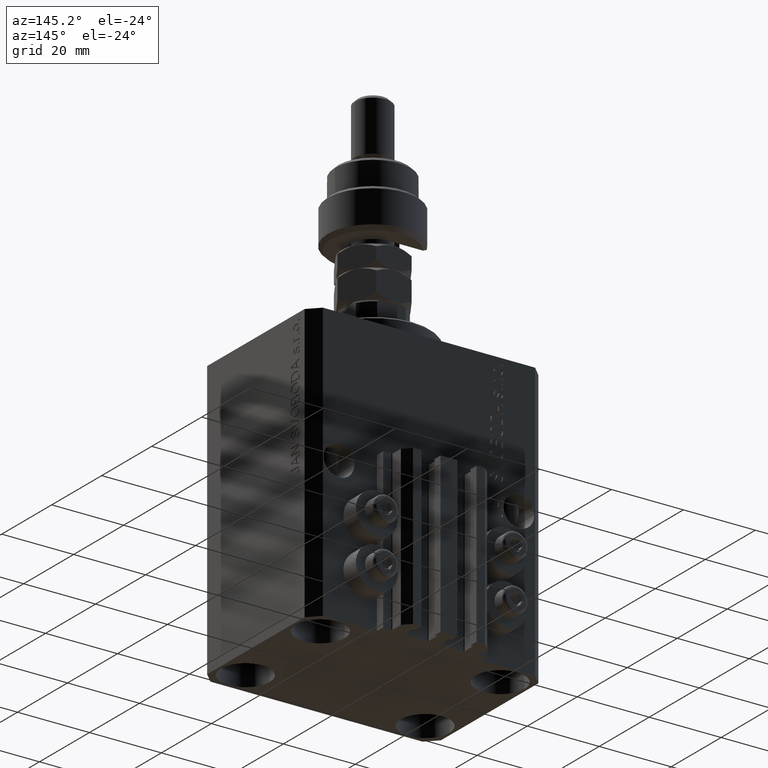
[diagram: clean part render]
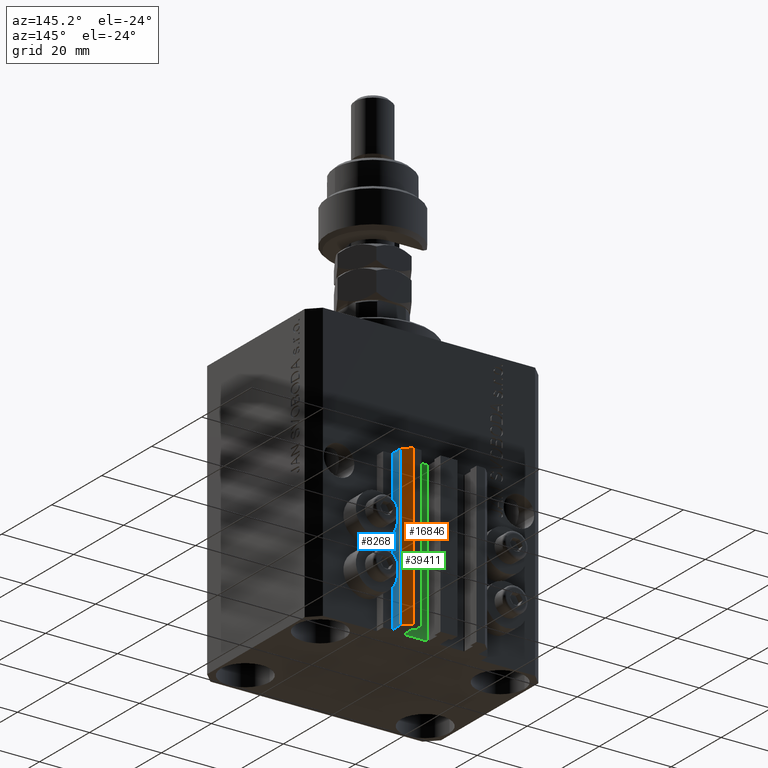
[diagram: same view with three faces highlighted in distinct colors, each labeled with its STEP entity id]
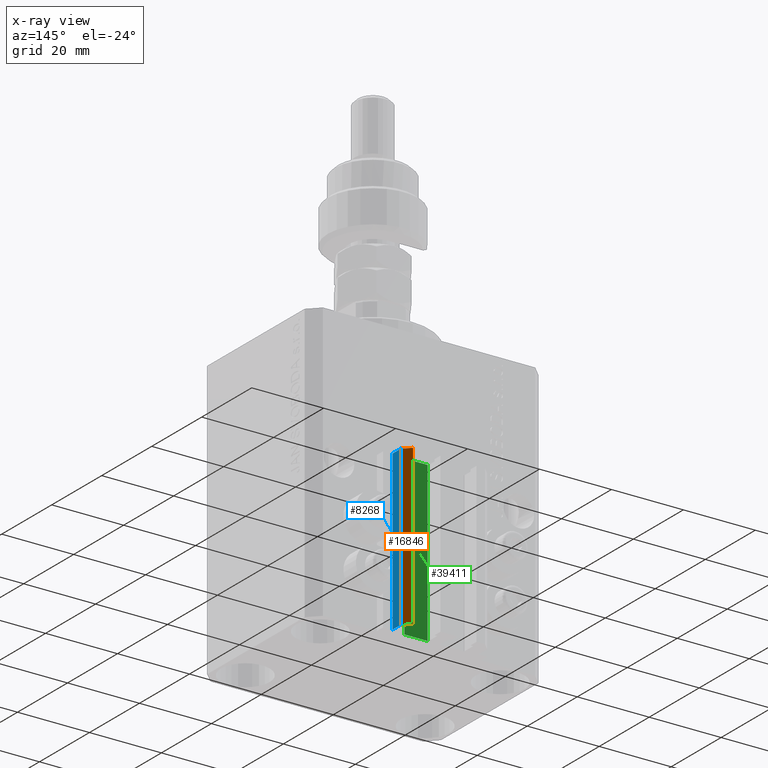
[diagram: x-ray of the same camera — body ghosted, the three highlighted faces saturated]
A machine part, auxiliary view with three faces highlighted in distinct colors.
The next image is the same camera in x-ray (body ghosted, the three faces saturated) — at least one of them is partly hidden behind the body in this view.
Their STEP definitions:

[orange] entity #16846 — the highlighted planar face has unit normal (0.7071, 0.7071, 0).
#663 = EDGE_CURVE ( 'NONE', #38667, #28273, #6923, .T. ) ;
#1920 = EDGE_CURVE ( 'NONE', #28273, #45455, #6463, .T. ) ;
#3165 = CARTESIAN_POINT ( 'NONE',  ( 12.00000000000000178, 28.49999999999950973, -77.00000000000000000 ) ) ;
#3170 = CARTESIAN_POINT ( 'NONE',  ( 12.00000000000000178, 28.49999999999950973, -77.00000000000000000 ) ) ;
#3185 = ORIENTED_EDGE ( 'NONE', *, *, #48329, .T. ) ;
#3403 = DIRECTION ( 'NONE',  ( -0.7071067811865507924, 0.7071067811865441310, 0.000000000000000000 ) ) ;
#5379 = CARTESIAN_POINT ( 'NONE',  ( 12.00000000000000178, 28.49999999999950973, -33.00000000000000000 ) ) ;
#6463 = LINE ( 'NONE', #33731, #44823 ) ;
#6923 = LINE ( 'NONE', #48870, #22187 ) ;
#7171 = DIRECTION ( 'NONE',  ( 0.000000000000000000, 0.000000000000000000, 1.000000000000000000 ) ) ;
#7207 = LINE ( 'NONE', #3170, #34107 ) ;
#8296 = DIRECTION ( 'NONE',  ( 0.000000000000000000, 0.000000000000000000, 1.000000000000000000 ) ) ;
#10625 = EDGE_CURVE ( 'NONE', #38667, #29911, #7207, .T. ) ;
#11849 = VECTOR ( 'NONE', #8296, 1000.000000000000000 ) ;
#14029 = ORIENTED_EDGE ( 'NONE', *, *, #663, .F. ) ;
#14316 = DIRECTION ( 'NONE',  ( 0.7071067811865442421, 0.7071067811865509034, -0.000000000000000000 ) ) ;
#16059 = EDGE_LOOP ( 'NONE', ( #36705, #14029, #34726, #3185 ) ) ;
#16846 = ADVANCED_FACE ( 'NONE', ( #22147 ), #22875, .T. ) ;
#22147 = FACE_OUTER_BOUND ( 'NONE', #16059, .T. ) ;
#22187 = VECTOR ( 'NONE', #7171, 1000.000000000000000 ) ;
#22875 = PLANE ( 'NONE',  #49694 ) ;
#27094 = CARTESIAN_POINT ( 'NONE',  ( 12.00000000000000178, 28.49999999999950973, -77.00000000000000000 ) ) ;
#28273 = VERTEX_POINT ( 'NONE', #5379 ) ;
#29911 = VERTEX_POINT ( 'NONE', #33039 ) ;
#30302 = LINE ( 'NONE', #30788, #11849 ) ;
#30788 = CARTESIAN_POINT ( 'NONE',  ( 9.999999999999994671, 30.49999999999949551, -77.00000000000000000 ) ) ;
#31428 = CARTESIAN_POINT ( 'NONE',  ( 9.999999999999994671, 30.49999999999949551, -33.00000000000000000 ) ) ;
#33039 = CARTESIAN_POINT ( 'NONE',  ( 9.999999999999994671, 30.49999999999949551, -77.00000000000000000 ) ) ;
#33731 = CARTESIAN_POINT ( 'NONE',  ( 12.00000000000000178, 28.49999999999950973, -33.00000000000000000 ) ) ;
#34107 = VECTOR ( 'NONE', #42065, 1000.000000000000000 ) ;
#34726 = ORIENTED_EDGE ( 'NONE', *, *, #10625, .T. ) ;
#36705 = ORIENTED_EDGE ( 'NONE', *, *, #1920, .F. ) ;
#38264 = DIRECTION ( 'NONE',  ( -0.7071067811865507924, 0.7071067811865441310, 0.000000000000000000 ) ) ;
#38667 = VERTEX_POINT ( 'NONE', #27094 ) ;
#42065 = DIRECTION ( 'NONE',  ( -0.7071067811865507924, 0.7071067811865441310, 0.000000000000000000 ) ) ;
#44823 = VECTOR ( 'NONE', #3403, 1000.000000000000000 ) ;
#45455 = VERTEX_POINT ( 'NONE', #31428 ) ;
#48329 = EDGE_CURVE ( 'NONE', #29911, #45455, #30302, .T. ) ;
#48870 = CARTESIAN_POINT ( 'NONE',  ( 12.00000000000000178, 28.49999999999950973, -77.00000000000000000 ) ) ;
#49694 = AXIS2_PLACEMENT_3D ( 'NONE', #3165, #14316, #38264 ) ;

[blue] entity #8268 — the highlighted planar face has unit normal (1, 0, 0).
#663 = EDGE_CURVE ( 'NONE', #38667, #28273, #6923, .T. ) ;
#1029 = CARTESIAN_POINT ( 'NONE',  ( 12.00000000000000355, 25.19999999999951257, -77.00000000000000000 ) ) ;
#4231 = ORIENTED_EDGE ( 'NONE', *, *, #24581, .F. ) ;
#4661 = CARTESIAN_POINT ( 'NONE',  ( 12.00000000000000355, 25.19999999999951257, -33.00000000000000000 ) ) ;
#5379 = CARTESIAN_POINT ( 'NONE',  ( 12.00000000000000178, 28.49999999999950973, -33.00000000000000000 ) ) ;
#6923 = LINE ( 'NONE', #48870, #22187 ) ;
#7171 = DIRECTION ( 'NONE',  ( 0.000000000000000000, 0.000000000000000000, 1.000000000000000000 ) ) ;
#7882 = ORIENTED_EDGE ( 'NONE', *, *, #19196, .T. ) ;
#7902 = DIRECTION ( 'NONE',  ( 0.000000000000000000, 0.000000000000000000, 1.000000000000000000 ) ) ;
#8140 = CARTESIAN_POINT ( 'NONE',  ( 12.00000000000000355, 25.19999999999951257, -77.00000000000000000 ) ) ;
#8268 = ADVANCED_FACE ( 'NONE', ( #18201 ), #34298, .T. ) ;
#15143 = DIRECTION ( 'NONE',  ( 0.000000000000000000, 0.000000000000000000, -1.000000000000000000 ) ) ;
#15854 = ORIENTED_EDGE ( 'NONE', *, *, #49461, .F. ) ;
#18201 = FACE_OUTER_BOUND ( 'NONE', #26188, .T. ) ;
#19196 = EDGE_CURVE ( 'NONE', #44681, #38667, #49086, .T. ) ;
#22187 = VECTOR ( 'NONE', #7171, 1000.000000000000000 ) ;
#22452 = VECTOR ( 'NONE', #7902, 1000.000000000000000 ) ;
#22582 = DIRECTION ( 'NONE',  ( 0.000000000000000000, 1.000000000000000000, 0.000000000000000000 ) ) ;
#24581 = EDGE_CURVE ( 'NONE', #31874, #28273, #30479, .T. ) ;
#25613 = CARTESIAN_POINT ( 'NONE',  ( 12.00000000000000178, 25.19999999999951257, -77.00000000000000000 ) ) ;
#26188 = EDGE_LOOP ( 'NONE', ( #4231, #15854, #7882, #31557 ) ) ;
#26379 = LINE ( 'NONE', #8140, #22452 ) ;
#26937 = CARTESIAN_POINT ( 'NONE',  ( 12.00000000000000178, 25.19999999999951257, -33.00000000000000000 ) ) ;
#27094 = CARTESIAN_POINT ( 'NONE',  ( 12.00000000000000178, 28.49999999999950973, -77.00000000000000000 ) ) ;
#28273 = VERTEX_POINT ( 'NONE', #5379 ) ;
#29985 = DIRECTION ( 'NONE',  ( 0.000000000000000000, 1.000000000000000000, 0.000000000000000000 ) ) ;
#30479 = LINE ( 'NONE', #26937, #37728 ) ;
#31557 = ORIENTED_EDGE ( 'NONE', *, *, #663, .T. ) ;
#31874 = VERTEX_POINT ( 'NONE', #4661 ) ;
#34298 = PLANE ( 'NONE',  #46129 ) ;
#35896 = VECTOR ( 'NONE', #22582, 1000.000000000000000 ) ;
#37728 = VECTOR ( 'NONE', #29985, 1000.000000000000000 ) ;
#38667 = VERTEX_POINT ( 'NONE', #27094 ) ;
#44681 = VERTEX_POINT ( 'NONE', #1029 ) ;
#44967 = DIRECTION ( 'NONE',  ( 1.000000000000000000, 0.000000000000000000, 0.000000000000000000 ) ) ;
#46129 = AXIS2_PLACEMENT_3D ( 'NONE', #49731, #44967, #15143 ) ;
#48870 = CARTESIAN_POINT ( 'NONE',  ( 12.00000000000000178, 28.49999999999950973, -77.00000000000000000 ) ) ;
#49086 = LINE ( 'NONE', #25613, #35896 ) ;
#49461 = EDGE_CURVE ( 'NONE', #44681, #31874, #26379, .T. ) ;
#49731 = CARTESIAN_POINT ( 'NONE',  ( 12.00000000000000178, 25.19999999999951257, -77.00000000000000000 ) ) ;

[green] entity #39411 — the highlighted planar face has unit normal (0, 1, 0).
#2353 = CARTESIAN_POINT ( 'NONE',  ( 8.200000000000001066, 24.49999999999949196, -77.00000000000000000 ) ) ;
#2901 = CARTESIAN_POINT ( 'NONE',  ( 8.200000000000001066, 24.49999999999949196, -33.00000000000000000 ) ) ;
#9200 = CARTESIAN_POINT ( 'NONE',  ( 1.800000000000000933, 24.49999999999949196, -77.00000000000000000 ) ) ;
#9852 = EDGE_CURVE ( 'NONE', #25181, #37025, #14442, .T. ) ;
#9866 = CARTESIAN_POINT ( 'NONE',  ( 8.200000000000001066, 24.49999999999949196, -77.00000000000000000 ) ) ;
#12355 = VERTEX_POINT ( 'NONE', #17463 ) ;
#13096 = VECTOR ( 'NONE', #25289, 1000.000000000000000 ) ;
#13179 = DIRECTION ( 'NONE',  ( 0.000000000000000000, 0.000000000000000000, 1.000000000000000000 ) ) ;
#14227 = VECTOR ( 'NONE', #24629, 1000.000000000000000 ) ;
#14442 = LINE ( 'NONE', #9866, #13096 ) ;
#16628 = VECTOR ( 'NONE', #39261, 1000.000000000000000 ) ;
#17463 = CARTESIAN_POINT ( 'NONE',  ( 1.800000000000000933, 24.49999999999949196, -77.00000000000000000 ) ) ;
#17498 = PLANE ( 'NONE',  #41511 ) ;
#17723 = ORIENTED_EDGE ( 'NONE', *, *, #9852, .F. ) ;
#19436 = ORIENTED_EDGE ( 'NONE', *, *, #42247, .T. ) ;
#20531 = DIRECTION ( 'NONE',  ( 0.000000000000000000, 1.000000000000000000, -0.000000000000000000 ) ) ;
#21034 = FACE_OUTER_BOUND ( 'NONE', #39806, .T. ) ;
#21084 = EDGE_CURVE ( 'NONE', #25181, #12355, #44540, .T. ) ;
#21108 = LINE ( 'NONE', #9200, #14227 ) ;
#21813 = EDGE_CURVE ( 'NONE', #37025, #43495, #46846, .T. ) ;
#24629 = DIRECTION ( 'NONE',  ( 0.000000000000000000, 0.000000000000000000, 1.000000000000000000 ) ) ;
#25181 = VERTEX_POINT ( 'NONE', #48818 ) ;
#25289 = DIRECTION ( 'NONE',  ( 0.000000000000000000, 0.000000000000000000, 1.000000000000000000 ) ) ;
#27514 = ORIENTED_EDGE ( 'NONE', *, *, #21813, .F. ) ;
#28146 = CARTESIAN_POINT ( 'NONE',  ( 8.200000000000001066, 24.49999999999949196, -33.00000000000000000 ) ) ;
#32636 = CARTESIAN_POINT ( 'NONE',  ( 1.800000000000000933, 24.49999999999949196, -33.00000000000000000 ) ) ;
#33402 = DIRECTION ( 'NONE',  ( -1.000000000000000000, 0.000000000000000000, 0.000000000000000000 ) ) ;
#37025 = VERTEX_POINT ( 'NONE', #2901 ) ;
#39206 = ORIENTED_EDGE ( 'NONE', *, *, #21084, .T. ) ;
#39261 = DIRECTION ( 'NONE',  ( -1.000000000000000000, 0.000000000000000000, 0.000000000000000000 ) ) ;
#39411 = ADVANCED_FACE ( 'NONE', ( #21034 ), #17498, .T. ) ;
#39806 = EDGE_LOOP ( 'NONE', ( #27514, #17723, #39206, #19436 ) ) ;
#41511 = AXIS2_PLACEMENT_3D ( 'NONE', #44501, #20531, #13179 ) ;
#42247 = EDGE_CURVE ( 'NONE', #12355, #43495, #21108, .T. ) ;
#43495 = VERTEX_POINT ( 'NONE', #32636 ) ;
#44501 = CARTESIAN_POINT ( 'NONE',  ( 8.200000000000001066, 24.49999999999949196, -77.00000000000000000 ) ) ;
#44540 = LINE ( 'NONE', #2353, #46450 ) ;
#46450 = VECTOR ( 'NONE', #33402, 1000.000000000000000 ) ;
#46846 = LINE ( 'NONE', #28146, #16628 ) ;
#48818 = CARTESIAN_POINT ( 'NONE',  ( 8.200000000000001066, 24.49999999999949196, -77.00000000000000000 ) ) ;